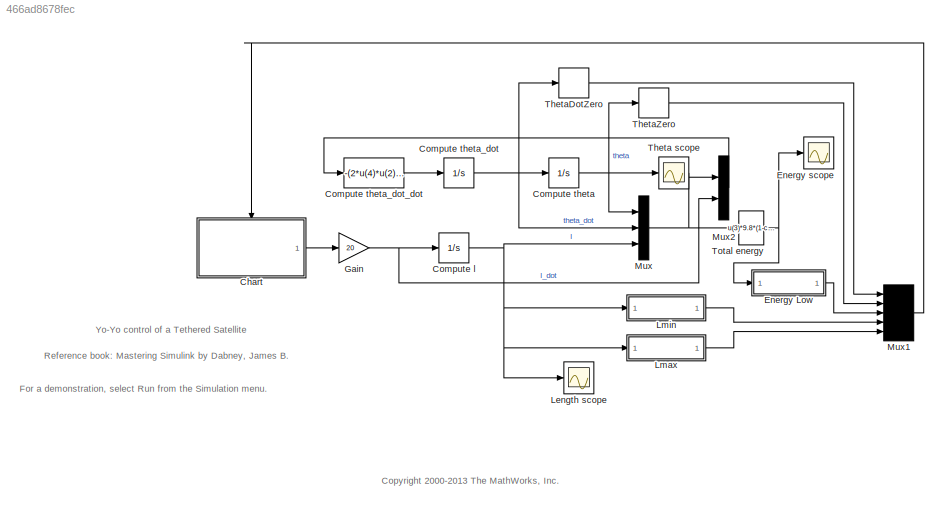
MODEL slx_466ad8678fec
KIND model
CONFIG AbsTol = auto
CONFIG EnableMultiTasking = on
CONFIG FixedStep = 1
CONFIG MaxStep = auto
CONFIG MinStep = auto
CONFIG RelTol = 1e-3
CONFIG SampleTimeConstraint = Unconstrained
CONFIG Solver = ode23
CONFIG SolverName = ode23
CONFIG StartTime = 0.0
CONFIG StopTime = 500
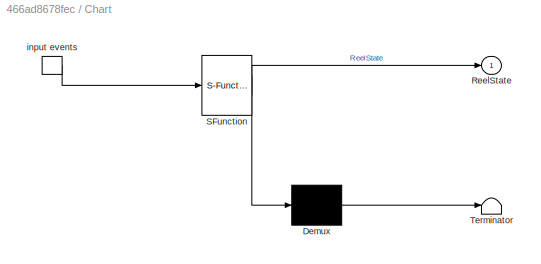
BLOCK [SubSystem] Chart
  ErrorFcn = Stateflow.Translate.translate
  PermitHierarchicalResolution = ExplicitOnly
  Ports = [0, 1, 0, 1]
  RequestExecContextInheritance = off
  SFBlockType = Chart
  TreatAsAtomicUnit = on
  Variant = off
BLOCK [Demux] Chart/ Demux 
  Outputs = 1
  Ports = [1, 1]
BLOCK [S-Function] Chart/ SFunction 
  EnableBusSupport = off
  FunctionName = sf_sfun
  PortCounts = [1 2]
  Ports = [1, 2]
  SFcnIsStateOwnerBlock = off
  SFunctionDeploymentMode = off
  Tag = Stateflow S-Function sf_yoyo 1
BLOCK [Terminator] Chart/ Terminator 
BLOCK [TriggerPort] Chart/ input events 
  Ports = [0, 1]
  ShowOutputPort = on
  TriggerType = either
  VariantControl = Variant
BLOCK [Outport] Chart/ReelState
  IconDisplay = Port number
BLOCK [Integrator] Compute l
  InitialCondition = 100
  LowerSaturationLimit = 95
  Ports = [1, 1]
  UpperSaturationLimit = 105
BLOCK [Integrator] Compute theta
  InitialCondition = 0.16
  Ports = [1, 1]
BLOCK [Integrator] Compute theta_dot
  Ports = [1, 1]
BLOCK [Fcn] Compute theta_dot_dot
  Expr = -(2*u(4)*u(2)+9.8*sin(u(1)))/u(3)
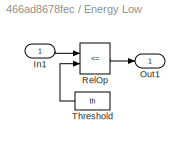
BLOCK [SubSystem] Energy Low
  Ports = [1, 1]
  RequestExecContextInheritance = off
  Variant = off
BLOCK [Inport] Energy Low/In1
  IconDisplay = Port number
BLOCK [Outport] Energy Low/Out1
  IconDisplay = Port number
BLOCK [RelationalOperator] Energy Low/RelOp
  InputSameDT = off
  Operator = <=
  Ports = [2, 1]
BLOCK [Constant] Energy Low/Threshold
  Value = th
BLOCK [Scope] Energy scope
  NumInputPorts = 1
  Ports = [1]
  ScopeSpecificationString = Simulink.scopes.TimeScopeBlockCfg('CurrentConfiguration', extmgr.ConfigurationSet(extmgr.Configuration('Core','General UI',true),extmgr.Configuration('Core','Source UI',true),extmgr.Configuration('Sources','WiredSimulink',true,'DataLogging',true,'DataLoggingVariableName','EnergyTraj','DataLoggingSaveFormat','StructureWithTime'),extmgr.Configuration('Visuals','Time Domain',true,'SerializedDisplays'...<+1762ch>
BLOCK [Gain] Gain
  Gain = 20
BLOCK [Scope] Length scope
  NumInputPorts = 1
  Ports = [1]
  ScopeSpecificationString = Simulink.scopes.TimeScopeBlockCfg('CurrentConfiguration', extmgr.ConfigurationSet(extmgr.Configuration('Core','General UI',true),extmgr.Configuration('Core','Source UI',true),extmgr.Configuration('Sources','WiredSimulink',true,'DataLogging',true,'DataLoggingVariableName','LengthTraj','DataLoggingSaveFormat','StructureWithTime'),extmgr.Configuration('Visuals','Time Domain',true,'SerializedDisplays'...<+1766ch>
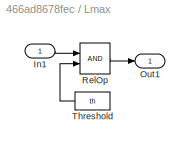
BLOCK [SubSystem] Lmax
  Ports = [1, 1]
  RequestExecContextInheritance = off
  Variant = off
BLOCK [Inport] Lmax/In1
  IconDisplay = Port number
BLOCK [Outport] Lmax/Out1
  IconDisplay = Port number
BLOCK [RelationalOperator] Lmax/RelOp
  InputSameDT = off
  Ports = [2, 1]
BLOCK [Constant] Lmax/Threshold
  Value = th
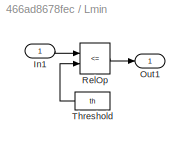
BLOCK [SubSystem] Lmin
  Ports = [1, 1]
  RequestExecContextInheritance = off
  Variant = off
BLOCK [Inport] Lmin/In1
  IconDisplay = Port number
BLOCK [Outport] Lmin/Out1
  IconDisplay = Port number
BLOCK [RelationalOperator] Lmin/RelOp
  InputSameDT = off
  Operator = <=
  Ports = [2, 1]
BLOCK [Constant] Lmin/Threshold
  Value = th
BLOCK [Mux] Mux
  DisplayOption = bar
  Inputs = 3
  Ports = [3, 1]
BLOCK [Mux] Mux1
  Inputs = 5
  Ports = [5, 1]
BLOCK [Mux] Mux2
  DisplayOption = bar
  Inputs = 2
  Ports = [2, 1]
BLOCK [Scope] Theta scope
  NumInputPorts = 1
  Ports = [1]
  ScopeSpecificationString = Simulink.scopes.TimeScopeBlockCfg('CurrentConfiguration', extmgr.ConfigurationSet(extmgr.Configuration('Core','General UI',true),extmgr.Configuration('Core','Source UI',true),extmgr.Configuration('Sources','WiredSimulink',true,'DataLogging',true,'DataLoggingVariableName','ThetaTraj','DataLoggingSaveFormat','StructureWithTime'),extmgr.Configuration('Visuals','Time Domain',true,'SerializedDisplays',...<+1769ch>
BLOCK [HitCross] ThetaDotZero
  Ports = [1, 1]
BLOCK [HitCross] ThetaZero
  Ports = [1, 1]
BLOCK [Fcn] Total energy 
  Expr = u(3)*9.8*(1-cos(u(1))) + 0.5*u(3)*u(3)*u(2)*u(2)
ANNOTATION (root): <copyright redacted>
ANNOTATION (root): For a demonstration, select Run from the Simulation menu.
ANNOTATION (root): Reference book: Mastering Simulink by Dabney, James B.
ANNOTATION (root): Yo-Yo control of a Tethered Satellite
LINE Chart:1 -> Gain:1
NET Compute l:1 -> Length scope:1, Lmax:1, Lmin:1, Mux:3
NET Compute theta:1 -> Mux:1, Theta scope:1, ThetaZero:1
NET Compute theta_dot:1 -> Compute theta:1, Mux:2, ThetaDotZero:1
LINE Compute theta_dot_dot:1 -> Compute theta_dot:1
LINE Energy Low/In1:1 -> Energy Low/RelOp:1
LINE Energy Low/RelOp:1 -> Energy Low/Out1:1
LINE Energy Low/Threshold:1 -> Energy Low/RelOp:2
LINE Energy Low:1 -> Mux1:3
NET Gain:1 -> Compute l:1, Mux2:2
LINE Lmax/In1:1 -> Lmax/RelOp:1
LINE Lmax/RelOp:1 -> Lmax/Out1:1
LINE Lmax/Threshold:1 -> Lmax/RelOp:2
LINE Lmax:1 -> Mux1:5
LINE Lmin/In1:1 -> Lmin/RelOp:1
LINE Lmin/RelOp:1 -> Lmin/Out1:1
LINE Lmin/Threshold:1 -> Lmin/RelOp:2
LINE Lmin:1 -> Mux1:4
LINE Mux1:1 -> Chart:trigger
LINE Mux2:1 -> Compute theta_dot_dot:1
NET Mux:1 -> Mux2:1, Total energy :1
LINE ThetaDotZero:1 -> Mux1:1
LINE ThetaZero:1 -> Mux1:2
NET Total energy :1 -> Energy Low:1, Energy scope:1
note: NET lines group one-source signal fan-out (src -> all destinations, sorted); 1:1 wires keep LINE
CHART Chart states=6 transitions=7
  STATE_LABEL 'Active'
  STATE_LABEL 'ReelMoving\nexit: ReelState = 0;'
  STATE_LABEL 'ReelOut\nentry: ReelState = 1;'
  STATE_LABEL 'ReelIn\nentry:ReelState= -1;'
  STATE_LABEL 'ReelStop'
  STATE_LABEL 'ThetaZero'
  STATE_LABEL 'Lmax'
  STATE_LABEL 'Lmin'
  STATE_LABEL 'ThetaDotZero'
  STATE_LABEL 'ReelMoving\nexit: ReelState = 0;'
  STATE_LABEL 'ReelOut\nentry: ReelState = 1;'
  STATE_LABEL 'ReelIn\nentry:ReelState= -1;'
  STATE_LABEL 'ReelOut\nentry: ReelState = 1;'
  STATE_LABEL 'ReelIn\nentry:ReelState= -1;'
  STATE_LABEL 'ReelStop'
  STATE_LABEL 'Inactive'
